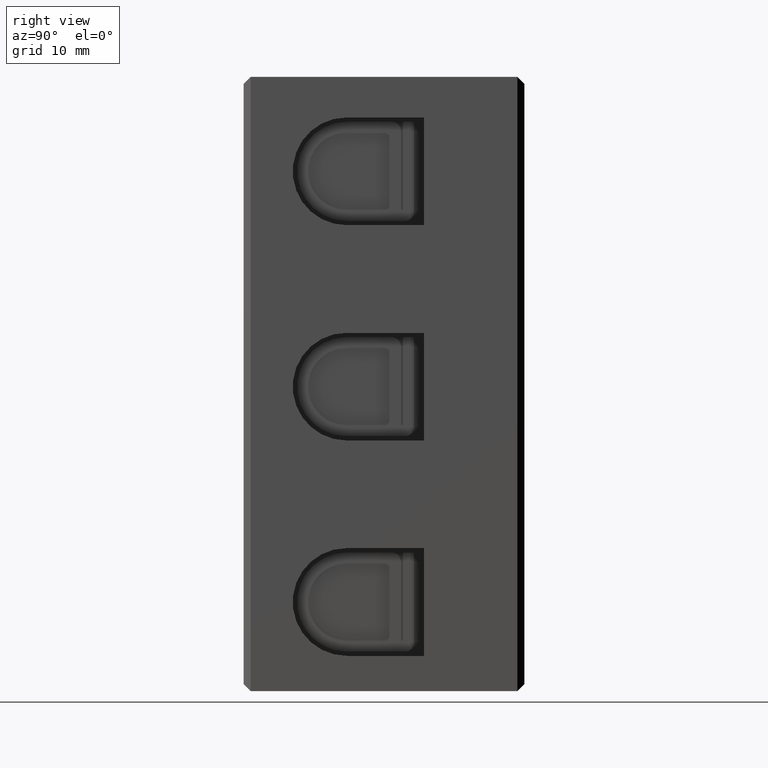
[diagram: clean part render]
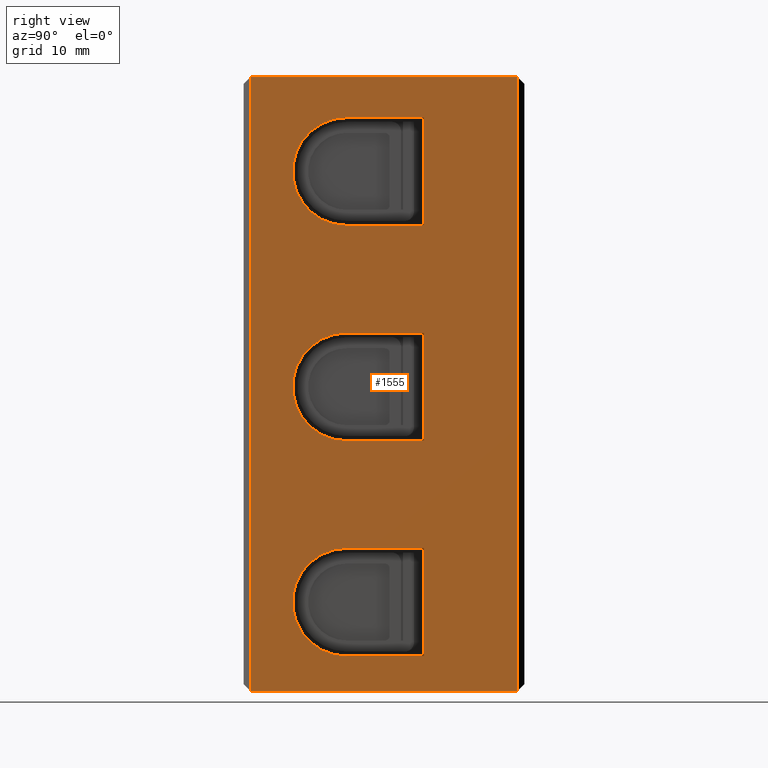
[diagram: same view with one face highlighted and labeled with its STEP entity id]
A machine part, right view. The second image highlights one B-rep face of the part: STEP entity #1555.
In plain terms, the highlighted planar face has unit normal (-1, 0, 0).
Its self-contained STEP definition (entity closure, byte-faithful):
#1086 = CARTESIAN_POINT ( 'NONE',  ( 30.00000000000000000, 11.00000000000000000, 26.74999999999999600 ) ) ;
#1087 = CARTESIAN_POINT ( 'NONE',  ( 30.00000000000001100, 19.24999999999999600, 61.25000000000000000 ) ) ;
#1096 = CARTESIAN_POINT ( 'NONE',  ( 30.00000000000001400, 0.7500000000000033300, 65.59999999999999400 ) ) ;
#1097 = CARTESIAN_POINT ( 'NONE',  ( 30.00000000000000000, 11.00000000000000000, 3.749999999999994700 ) ) ;
#1099 = CARTESIAN_POINT ( 'NONE',  ( 30.00000000000000000, 11.00000000000000000, 15.24999999999999600 ) ) ;
#1108 = CARTESIAN_POINT ( 'NONE',  ( 30.00000000000000700, 29.25000000000000000, 65.59999999999999400 ) ) ;
#1109 = CARTESIAN_POINT ( 'NONE',  ( 30.00000000000000400, 0.7500000000000021100, -1.334923924872790200E-015 ) ) ;
#1112 = CARTESIAN_POINT ( 'NONE',  ( 30.00000000000000400, 29.25000000000000000, -1.924458856161770400E-014 ) ) ;
#1117 = CARTESIAN_POINT ( 'NONE',  ( 30.00000000000001100, 19.24999999999999600, 49.74999999999999300 ) ) ;
#1122 = CARTESIAN_POINT ( 'NONE',  ( 30.00000000000000000, 19.24999999999999600, 15.24999999999999500 ) ) ;
#1125 = CARTESIAN_POINT ( 'NONE',  ( 30.00000000000001100, 11.00000000000000000, 61.25000000000000000 ) ) ;
#1131 = CARTESIAN_POINT ( 'NONE',  ( 30.00000000000000000, 19.24999999999999600, 38.25000000000000000 ) ) ;
#1132 = CARTESIAN_POINT ( 'NONE',  ( 30.00000000000000000, 11.00000000000000000, 38.25000000000000000 ) ) ;
#1134 = CARTESIAN_POINT ( 'NONE',  ( 30.00000000000000000, 19.24999999999999600, 26.74999999999999600 ) ) ;
#1144 = CARTESIAN_POINT ( 'NONE',  ( 30.00000000000001100, 11.00000000000000000, 49.74999999999999300 ) ) ;
#1152 = CARTESIAN_POINT ( 'NONE',  ( 30.00000000000000000, 19.24999999999999600, 3.749999999999995100 ) ) ;
#1555 = ADVANCED_FACE ( 'NONE', ( #3373, #3386, #3387, #3374 ), #3390, .F. ) ;
#1734 = EDGE_CURVE ( 'NONE', #9176, #9194, #8725, .T. ) ;
#1742 = EDGE_CURVE ( 'NONE', #9194, #9211, #2098, .T. ) ;
#1751 = EDGE_CURVE ( 'NONE', #9211, #9190, #2128, .T. ) ;
#1753 = EDGE_CURVE ( 'NONE', #9178, #9193, #2157, .T. ) ;
#1763 = EDGE_CURVE ( 'NONE', #9155, #9154, #2160, .T. ) ;
#1767 = EDGE_CURVE ( 'NONE', #9154, #9196, #2171, .T. ) ;
#1769 = EDGE_CURVE ( 'NONE', #9189, #9178, #2218, .T. ) ;
#1774 = EDGE_CURVE ( 'NONE', #9203, #9165, #2214, .T. ) ;
#1788 = EDGE_CURVE ( 'NONE', #9156, #9193, #2288, .T. ) ;
#1789 = EDGE_CURVE ( 'NONE', #9164, #9167, #2259, .T. ) ;
#1795 = EDGE_CURVE ( 'NONE', #9189, #9156, #2246, .T. ) ;
#1802 = EDGE_CURVE ( 'NONE', #9213, #9155, #2264, .T. ) ;
#1804 = EDGE_CURVE ( 'NONE', #9165, #9164, #7791, .T. ) ;
#1805 = EDGE_CURVE ( 'NONE', #9167, #9203, #2276, .T. ) ;
#1807 = EDGE_CURVE ( 'NONE', #9190, #9176, #2332, .T. ) ;
#1810 = EDGE_CURVE ( 'NONE', #9196, #9213, #7815, .T. ) ;
#2064 = CARTESIAN_POINT ( 'NONE',  ( 30.00000000000000000, 11.00000000000000000, 9.499999999999996400 ) ) ;
#2076 = DIRECTION ( 'NONE',  ( 1.000000000000000000, -0.0000000000000000000, -1.224646799147353200E-016 ) ) ;
#2078 = DIRECTION ( 'NONE',  ( 0.0000000000000000000, 0.0000000000000000000, 1.000000000000000000 ) ) ;
#2091 = CARTESIAN_POINT ( 'NONE',  ( 30.00000000000000000, 30.00000000000000000, 3.749999999999995100 ) ) ;
#2098 = LINE ( 'NONE', #2091, #7739 ) ;
#2103 = DIRECTION ( 'NONE',  ( 0.0000000000000000000, 1.000000000000000000, -0.0000000000000000000 ) ) ;
#2128 = LINE ( 'NONE', #2153, #7719 ) ;
#2136 = DIRECTION ( 'NONE',  ( 1.057758217059028900E-016, 0.0000000000000000000, 1.000000000000000000 ) ) ;
#2152 = CARTESIAN_POINT ( 'NONE',  ( 30.00000000000000000, 30.00000000000000000, 0.0000000000000000000 ) ) ;
#2153 = CARTESIAN_POINT ( 'NONE',  ( 30.00000000000000000, 19.24999999999999600, 0.0000000000000000000 ) ) ;
#2157 = LINE ( 'NONE', #2152, #7718 ) ;
#2159 = DIRECTION ( 'NONE',  ( -0.0000000000000000000, 1.000000000000000000, 0.0000000000000000000 ) ) ;
#2160 = LINE ( 'NONE', #2164, #7701 ) ;
#2162 = DIRECTION ( 'NONE',  ( 1.057758217059028900E-016, 0.0000000000000000000, 1.000000000000000000 ) ) ;
#2164 = CARTESIAN_POINT ( 'NONE',  ( 30.00000000000000000, 19.24999999999999600, 0.0000000000000000000 ) ) ;
#2171 = LINE ( 'NONE', #2198, #7703 ) ;
#2186 = DIRECTION ( 'NONE',  ( -0.0000000000000000000, -1.000000000000000000, 0.0000000000000000000 ) ) ;
#2198 = CARTESIAN_POINT ( 'NONE',  ( 30.00000000000000700, 30.00000000000000000, 61.25000000000000000 ) ) ;
#2199 = DIRECTION ( 'NONE',  ( -5.288791085295143700E-017, 5.288791085295143700E-017, -1.000000000000000000 ) ) ;
#2204 = CARTESIAN_POINT ( 'NONE',  ( 30.00000000000000400, 30.00000000000000000, 38.25000000000000000 ) ) ;
#2214 = LINE ( 'NONE', #2204, #7731 ) ;
#2218 = LINE ( 'NONE', #2222, #7740 ) ;
#2221 = DIRECTION ( 'NONE',  ( -0.0000000000000000000, -1.000000000000000000, 0.0000000000000000000 ) ) ;
#2222 = CARTESIAN_POINT ( 'NONE',  ( 30.00000000000000400, 0.7500000000000050000, 0.0000000000000000000 ) ) ;
#2246 = LINE ( 'NONE', #2278, #7796 ) ;
#2248 = CARTESIAN_POINT ( 'NONE',  ( 30.00000000000000000, 19.24999999999999600, 0.0000000000000000000 ) ) ;
#2253 = CARTESIAN_POINT ( 'NONE',  ( 30.00000000000000400, 30.00000000000000000, 26.74999999999999600 ) ) ;
#2259 = LINE ( 'NONE', #2253, #7761 ) ;
#2262 = DIRECTION ( 'NONE',  ( 0.0000000000000000000, 1.000000000000000000, -0.0000000000000000000 ) ) ;
#2264 = LINE ( 'NONE', #2267, #7790 ) ;
#2267 = CARTESIAN_POINT ( 'NONE',  ( 30.00000000000000700, 30.00000000000000000, 49.74999999999999300 ) ) ;
#2272 = CARTESIAN_POINT ( 'NONE',  ( 30.00000000000000000, 29.25000000000000000, 0.0000000000000000000 ) ) ;
#2276 = LINE ( 'NONE', #2248, #7808 ) ;
#2278 = CARTESIAN_POINT ( 'NONE',  ( 30.00000000000000700, 30.00000000000000000, 65.59999999999999400 ) ) ;
#2279 = DIRECTION ( 'NONE',  ( -1.057758217059028900E-016, -0.0000000000000000000, -1.000000000000000000 ) ) ;
#2280 = DIRECTION ( 'NONE',  ( 0.0000000000000000000, 1.000000000000000000, -0.0000000000000000000 ) ) ;
#2288 = LINE ( 'NONE', #2272, #7757 ) ;
#2292 = CARTESIAN_POINT ( 'NONE',  ( 30.00000000000000000, 11.00000000000000000, 32.50000000000000000 ) ) ;
#2293 = CARTESIAN_POINT ( 'NONE',  ( 30.00000000000001400, 11.00000000000000000, 55.50000000000000000 ) ) ;
#2296 = DIRECTION ( 'NONE',  ( 1.000000000000000000, -0.0000000000000000000, -1.224646799147353200E-016 ) ) ;
#2310 = DIRECTION ( 'NONE',  ( -0.0000000000000000000, -1.000000000000000000, 0.0000000000000000000 ) ) ;
#2312 = DIRECTION ( 'NONE',  ( 1.000000000000000000, -0.0000000000000000000, -1.224646799147353200E-016 ) ) ;
#2316 = CARTESIAN_POINT ( 'NONE',  ( 30.00000000000000000, 30.00000000000000000, 15.24999999999999600 ) ) ;
#2327 = DIRECTION ( 'NONE',  ( 0.0000000000000000000, 0.0000000000000000000, 1.000000000000000000 ) ) ;
#2328 = DIRECTION ( 'NONE',  ( 1.057758217059028900E-016, 0.0000000000000000000, 1.000000000000000000 ) ) ;
#2329 = DIRECTION ( 'NONE',  ( 0.0000000000000000000, 1.000000000000000000, -0.0000000000000000000 ) ) ;
#2330 = DIRECTION ( 'NONE',  ( 0.0000000000000000000, 0.0000000000000000000, 1.000000000000000000 ) ) ;
#2332 = LINE ( 'NONE', #2316, #7800 ) ;
#3347 = DIRECTION ( 'NONE',  ( 1.057758217059028900E-016, 0.0000000000000000000, 1.000000000000000000 ) ) ;
#3354 = DIRECTION ( 'NONE',  ( -1.000000000000000000, 0.0000000000000000000, 1.057758217059028900E-016 ) ) ;
#3373 = FACE_OUTER_BOUND ( 'NONE', #4340, .T. ) ;
#3374 = FACE_BOUND ( 'NONE', #4308, .T. ) ;
#3386 = FACE_BOUND ( 'NONE', #4339, .T. ) ;
#3387 = FACE_BOUND ( 'NONE', #4310, .T. ) ;
#3390 = PLANE ( 'NONE',  #8482 ) ;
#3397 = CARTESIAN_POINT ( 'NONE',  ( 30.00000000000000000, 30.00000000000000000, 0.0000000000000000000 ) ) ;
#4308 = EDGE_LOOP ( 'NONE', ( #5535, #5492, #5537, #5501 ) ) ;
#4310 = EDGE_LOOP ( 'NONE', ( #5522, #5542, #5490, #5514 ) ) ;
#4339 = EDGE_LOOP ( 'NONE', ( #5433, #5540, #5430, #5449 ) ) ;
#4340 = EDGE_LOOP ( 'NONE', ( #5493, #5494, #5431, #5541 ) ) ;
#5430 = ORIENTED_EDGE ( 'NONE', *, *, #1751, .F. ) ;
#5431 = ORIENTED_EDGE ( 'NONE', *, *, #1788, .F. ) ;
#5433 = ORIENTED_EDGE ( 'NONE', *, *, #1734, .F. ) ;
#5449 = ORIENTED_EDGE ( 'NONE', *, *, #1742, .F. ) ;
#5490 = ORIENTED_EDGE ( 'NONE', *, *, #1805, .F. ) ;
#5492 = ORIENTED_EDGE ( 'NONE', *, *, #1767, .F. ) ;
#5493 = ORIENTED_EDGE ( 'NONE', *, *, #1769, .T. ) ;
#5494 = ORIENTED_EDGE ( 'NONE', *, *, #1753, .T. ) ;
#5501 = ORIENTED_EDGE ( 'NONE', *, *, #1802, .F. ) ;
#5514 = ORIENTED_EDGE ( 'NONE', *, *, #1789, .F. ) ;
#5522 = ORIENTED_EDGE ( 'NONE', *, *, #1804, .F. ) ;
#5535 = ORIENTED_EDGE ( 'NONE', *, *, #1810, .F. ) ;
#5537 = ORIENTED_EDGE ( 'NONE', *, *, #1763, .F. ) ;
#5540 = ORIENTED_EDGE ( 'NONE', *, *, #1807, .F. ) ;
#5541 = ORIENTED_EDGE ( 'NONE', *, *, #1795, .F. ) ;
#5542 = ORIENTED_EDGE ( 'NONE', *, *, #1774, .F. ) ;
#7701 = VECTOR ( 'NONE', #2136, 1000.000000000000000 ) ;
#7703 = VECTOR ( 'NONE', #2221, 1000.000000000000000 ) ;
#7718 = VECTOR ( 'NONE', #2159, 1000.000000000000000 ) ;
#7719 = VECTOR ( 'NONE', #2162, 1000.000000000000000 ) ;
#7731 = VECTOR ( 'NONE', #2186, 1000.000000000000000 ) ;
#7738 = AXIS2_PLACEMENT_3D ( 'NONE', #2064, #2076, #2078 ) ;
#7739 = VECTOR ( 'NONE', #2103, 1000.000000000000000 ) ;
#7740 = VECTOR ( 'NONE', #2199, 1000.000000000000000 ) ;
#7757 = VECTOR ( 'NONE', #2279, 1000.000000000000000 ) ;
#7761 = VECTOR ( 'NONE', #2262, 1000.000000000000000 ) ;
#7781 = AXIS2_PLACEMENT_3D ( 'NONE', #2293, #2312, #2330 ) ;
#7790 = VECTOR ( 'NONE', #2329, 1000.000000000000000 ) ;
#7791 = CIRCLE ( 'NONE', #7798, 5.749999999999998200 ) ;
#7796 = VECTOR ( 'NONE', #2280, 1000.000000000000000 ) ;
#7798 = AXIS2_PLACEMENT_3D ( 'NONE', #2292, #2296, #2327 ) ;
#7800 = VECTOR ( 'NONE', #2310, 1000.000000000000000 ) ;
#7808 = VECTOR ( 'NONE', #2328, 1000.000000000000000 ) ;
#7815 = CIRCLE ( 'NONE', #7781, 5.750000000000005300 ) ;
#8482 = AXIS2_PLACEMENT_3D ( 'NONE', #3397, #3354, #3347 ) ;
#8725 = CIRCLE ( 'NONE', #7738, 5.750000000000001800 ) ;
#9154 = VERTEX_POINT ( 'NONE', #1087 ) ;
#9155 = VERTEX_POINT ( 'NONE', #1117 ) ;
#9156 = VERTEX_POINT ( 'NONE', #1108 ) ;
#9164 = VERTEX_POINT ( 'NONE', #1086 ) ;
#9165 = VERTEX_POINT ( 'NONE', #1132 ) ;
#9167 = VERTEX_POINT ( 'NONE', #1134 ) ;
#9176 = VERTEX_POINT ( 'NONE', #1099 ) ;
#9178 = VERTEX_POINT ( 'NONE', #1109 ) ;
#9189 = VERTEX_POINT ( 'NONE', #1096 ) ;
#9190 = VERTEX_POINT ( 'NONE', #1122 ) ;
#9193 = VERTEX_POINT ( 'NONE', #1112 ) ;
#9194 = VERTEX_POINT ( 'NONE', #1097 ) ;
#9196 = VERTEX_POINT ( 'NONE', #1125 ) ;
#9203 = VERTEX_POINT ( 'NONE', #1131 ) ;
#9211 = VERTEX_POINT ( 'NONE', #1152 ) ;
#9213 = VERTEX_POINT ( 'NONE', #1144 ) ;